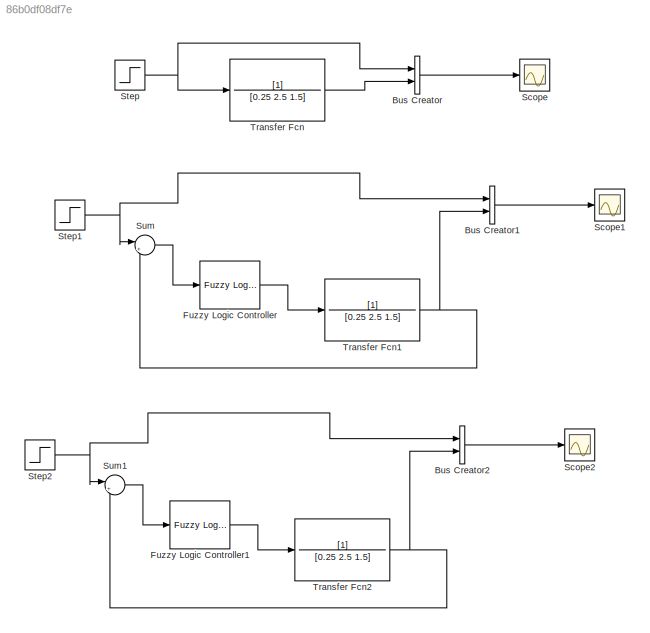
MODEL slx_86b0df08df7e
KIND model
CONFIG AbsTol = auto
CONFIG FixedStep = auto
CONFIG MaxStep = auto
CONFIG MinStep = auto
CONFIG RelTol = 1e-3
CONFIG SampleTimeConstraint = Unconstrained
CONFIG Solver = ode45
CONFIG SolverMode = Auto
CONFIG SolverName = ode45
CONFIG StartTime = 0.0
CONFIG StopTime = 10.0
BLOCK [BusCreator] Bus Creator
  DisplayOption = bar
  Inputs = 2
  Ports = [2, 1]
BLOCK [BusCreator] Bus Creator1
  DisplayOption = bar
  Inputs = 2
  Ports = [2, 1]
BLOCK [BusCreator] Bus Creator2
  DisplayOption = bar
  Inputs = 2
  Ports = [2, 1]
BLOCK [Reference] Fuzzy Logic Controller  REF=fuzblock/Fuzzy Logic   (lib defined in mdl_858b3b3e7478)
Controller
  Ports = [1, 1]
  SourceBlock = fuzblock/Fuzzy Logic \nController
  SourceType = FIS
  fis = controlador
BLOCK [Reference] Fuzzy Logic Controller1  REF=fuzblock/Fuzzy Logic   (lib defined in mdl_858b3b3e7478)
Controller
  Ports = [1, 1]
  SourceBlock = fuzblock/Fuzzy Logic \nController
  SourceType = FIS
  fis = neurocontrolador
BLOCK [Scope] Scope
  Floating = off
  NumInputPorts = 1
  Ports = [1]
BLOCK [Scope] Scope1
  Floating = off
  NumInputPorts = 1
  Ports = [1]
  SaveName = ScopeData1
BLOCK [Scope] Scope2
  Floating = off
  NumInputPorts = 1
  Ports = [1]
  SaveName = ScopeData2
BLOCK [Step] Step
  SampleTime = 0
BLOCK [Step] Step1
  SampleTime = 0
BLOCK [Step] Step2
  SampleTime = 0
BLOCK [Sum] Sum
  IconShape = round
  InputSameDT = off
  Inputs = |+-
  OutDataTypeStr = Inherit: Inherit via internal rule
  Ports = [2, 1]
  SaturateOnIntegerOverflow = off
BLOCK [Sum] Sum1
  IconShape = round
  InputSameDT = off
  Inputs = |+-
  OutDataTypeStr = Inherit: Inherit via internal rule
  Ports = [2, 1]
  SaturateOnIntegerOverflow = off
BLOCK [TransferFcn] Transfer Fcn
  Denominator = [0.25 2.5 1.5]
BLOCK [TransferFcn] Transfer Fcn1
  Denominator = [0.25 2.5 1.5]
BLOCK [TransferFcn] Transfer Fcn2
  Denominator = [0.25 2.5 1.5]
LINE Bus Creator1:1 -> Scope1:1
LINE Bus Creator2:1 -> Scope2:1
LINE Bus Creator:1 -> Scope:1
LINE Fuzzy Logic Controller1:1 -> Transfer Fcn2:1
LINE Fuzzy Logic Controller:1 -> Transfer Fcn1:1
NET Step1:1 -> Bus Creator1:1, Sum:1
NET Step2:1 -> Bus Creator2:1, Sum1:1
NET Step:1 -> Bus Creator:1, Transfer Fcn:1
LINE Sum1:1 -> Fuzzy Logic Controller1:1
LINE Sum:1 -> Fuzzy Logic Controller:1
NET Transfer Fcn1:1 -> Bus Creator1:2, Sum:2
NET Transfer Fcn2:1 -> Bus Creator2:2, Sum1:2
LINE Transfer Fcn:1 -> Bus Creator:2
note: NET lines group one-source signal fan-out (src -> all destinations, sorted); 1:1 wires keep LINE
